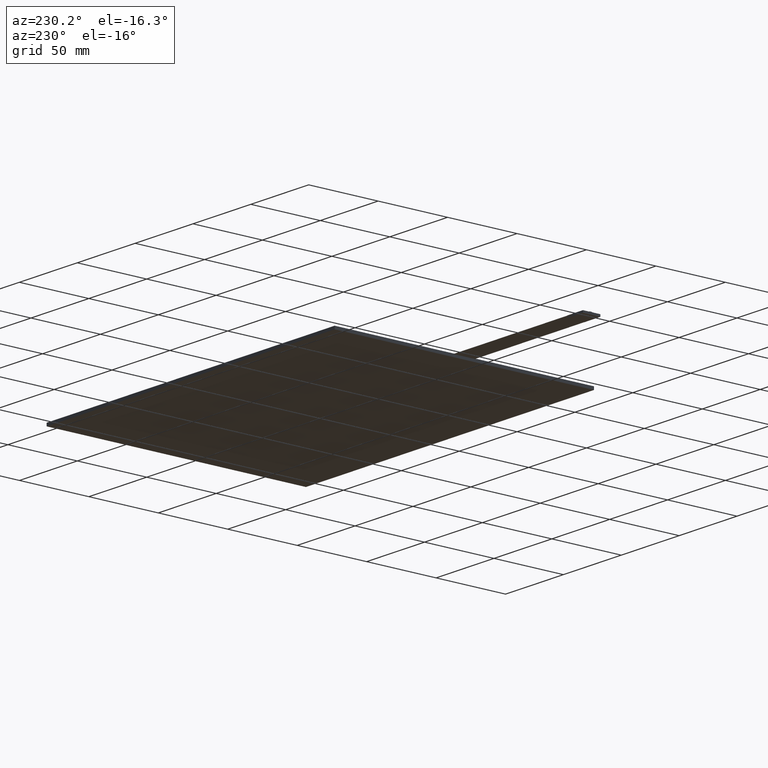
[diagram: clean part render]
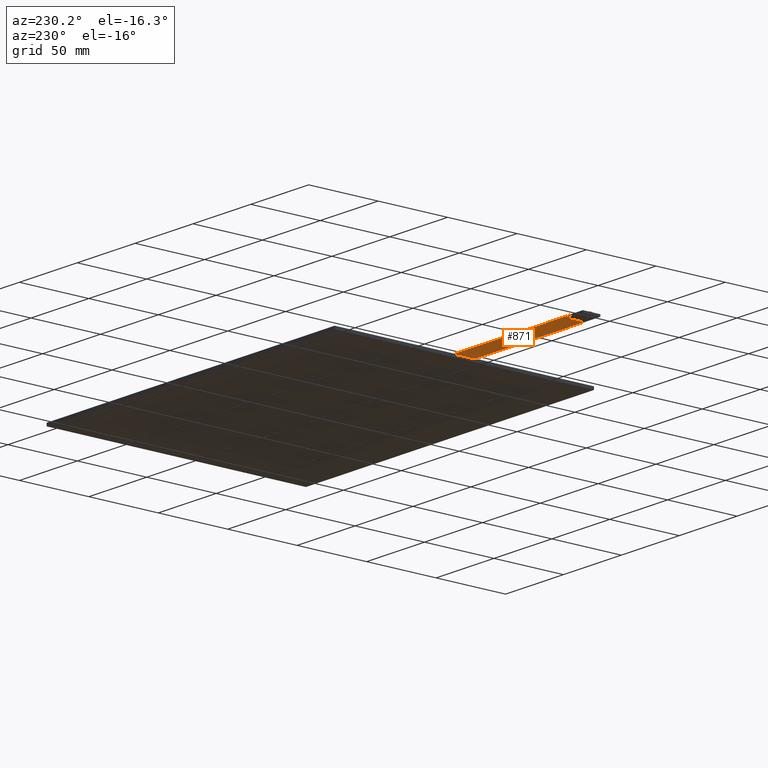
[diagram: same view with one face highlighted and labeled with its STEP entity id]
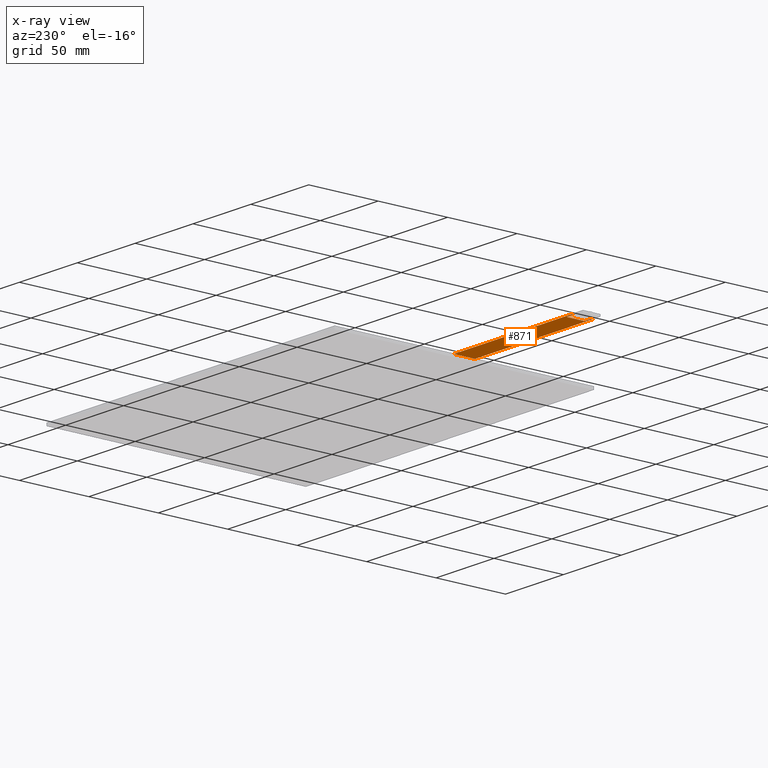
[diagram: x-ray of the same camera — body ghosted, the highlighted face saturated]
A machine part, auxiliary view. The second image highlights one B-rep face of the part: STEP entity #871.
The next image is the same camera in x-ray: the body ghosted, the highlighted face saturated — about 0% of this face is hidden behind the body in this view.
In plain terms, the highlighted planar face has unit normal (0, 0, -1).
Its self-contained STEP definition (entity closure, byte-faithful):
#93=FACE_OUTER_BOUND('',#137,.T.);
#137=EDGE_LOOP('',(#737,#738,#739,#740,#741,#742,#743,#744));
#209=LINE('',#1270,#323);
#213=LINE('',#1278,#327);
#223=LINE('',#1297,#337);
#232=LINE('',#1315,#346);
#235=LINE('',#1320,#349);
#236=LINE('',#1323,#350);
#239=LINE('',#1328,#353);
#240=LINE('',#1330,#354);
#323=VECTOR('',#1048,10.);
#327=VECTOR('',#1054,10.);
#337=VECTOR('',#1070,10.);
#346=VECTOR('',#1085,10.);
#349=VECTOR('',#1090,10.);
#350=VECTOR('',#1093,10.);
#353=VECTOR('',#1098,10.);
#354=VECTOR('',#1101,10.);
#419=VERTEX_POINT('',#1268);
#420=VERTEX_POINT('',#1269);
#423=VERTEX_POINT('',#1277);
#429=VERTEX_POINT('',#1296);
#435=VERTEX_POINT('',#1314);
#436=VERTEX_POINT('',#1318);
#437=VERTEX_POINT('',#1322);
#438=VERTEX_POINT('',#1326);
#513=EDGE_CURVE('',#419,#420,#209,.T.);
#517=EDGE_CURVE('',#423,#419,#213,.T.);
#527=EDGE_CURVE('',#420,#429,#223,.T.);
#536=EDGE_CURVE('',#435,#423,#232,.T.);
#539=EDGE_CURVE('',#429,#436,#235,.T.);
#540=EDGE_CURVE('',#437,#435,#236,.T.);
#543=EDGE_CURVE('',#436,#438,#239,.T.);
#544=EDGE_CURVE('',#437,#438,#240,.T.);
#737=ORIENTED_EDGE('',*,*,#527,.T.);
#738=ORIENTED_EDGE('',*,*,#539,.T.);
#739=ORIENTED_EDGE('',*,*,#543,.T.);
#740=ORIENTED_EDGE('',*,*,#544,.F.);
#741=ORIENTED_EDGE('',*,*,#540,.T.);
#742=ORIENTED_EDGE('',*,*,#536,.T.);
#743=ORIENTED_EDGE('',*,*,#517,.T.);
#744=ORIENTED_EDGE('',*,*,#513,.T.);
#828=PLANE('',#934);
#871=ADVANCED_FACE('',(#93),#828,.T.);
#934=AXIS2_PLACEMENT_3D('',#1329,#1099,#1100);
#1048=DIRECTION('',(-2.83084755282908E-15,1.,0.));
#1054=DIRECTION('',(1.,1.6184009105323E-16,0.));
#1070=DIRECTION('',(-1.,0.,0.));
#1085=DIRECTION('',(0.,1.,0.));
#1090=DIRECTION('',(0.,1.,0.));
#1093=DIRECTION('',(-1.,-1.20024110770287E-16,0.));
#1098=DIRECTION('',(1.,0.,0.));
#1099=DIRECTION('center_axis',(0.,0.,-1.));
#1100=DIRECTION('ref_axis',(-1.,0.,0.));
#1101=DIRECTION('',(-1.90300159558653E-16,1.,0.));
#1268=CARTESIAN_POINT('',(-220.75,-6.28000000000001,-0.3));
#1269=CARTESIAN_POINT('',(-220.75,6.27,-0.3));
#1270=CARTESIAN_POINT('',(-220.75,-3.14250000000007,-0.3));
#1277=CARTESIAN_POINT('',(-226.21,-6.28000000000001,-0.3));
#1278=CARTESIAN_POINT('',(-204.9025,-6.28,-0.3));
#1296=CARTESIAN_POINT('',(-226.21,6.27,-0.3));
#1297=CARTESIAN_POINT('',(-198.0425,6.27,-0.3));
#1314=CARTESIAN_POINT('',(-226.21,-7.62500000000001,-0.3));
#1315=CARTESIAN_POINT('',(-226.21,7.61500000000001,-0.3));
#1318=CARTESIAN_POINT('',(-226.21,7.61500000000001,-0.3));
#1320=CARTESIAN_POINT('',(-226.21,7.61500000000001,-0.3));
#1322=CARTESIAN_POINT('',(-124.46,-7.62499999999999,-0.3));
#1323=CARTESIAN_POINT('',(-226.21,-7.62500000000001,-0.3));
#1326=CARTESIAN_POINT('',(-124.46,7.61500000000001,-0.3));
#1328=CARTESIAN_POINT('',(-124.46,7.61500000000001,-0.3));
#1329=CARTESIAN_POINT('Origin',(-175.335,-0.00499999999999945,-0.3));
#1330=CARTESIAN_POINT('',(-124.46,-46.675,-0.3));